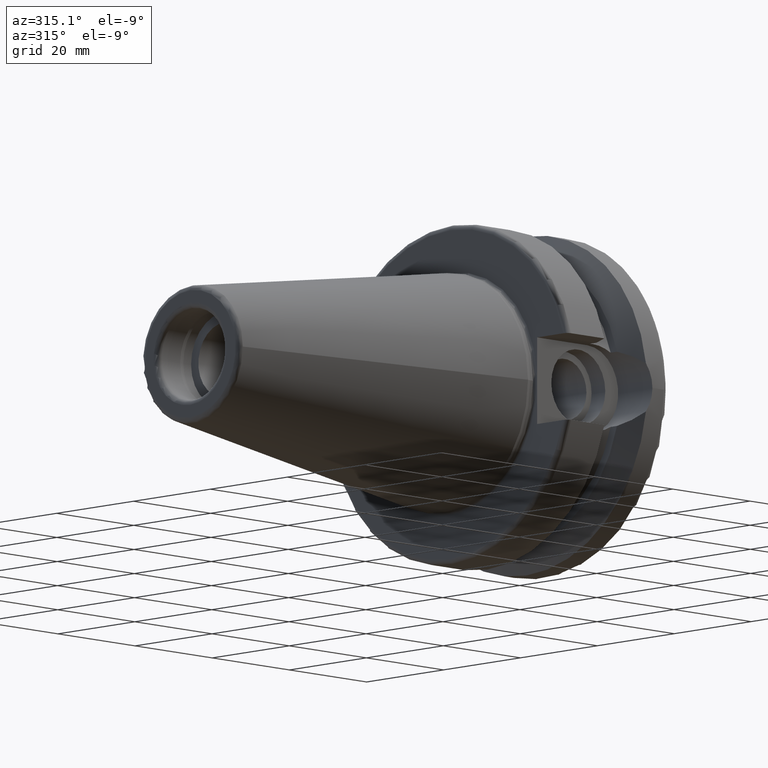
[diagram: clean part render]
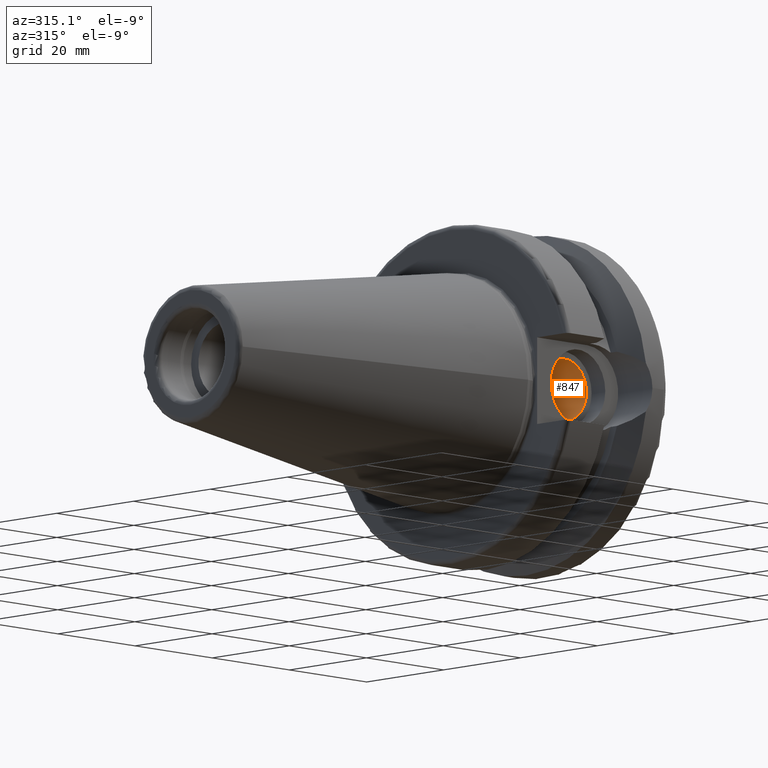
[diagram: same view with one face highlighted and labeled with its STEP entity id]
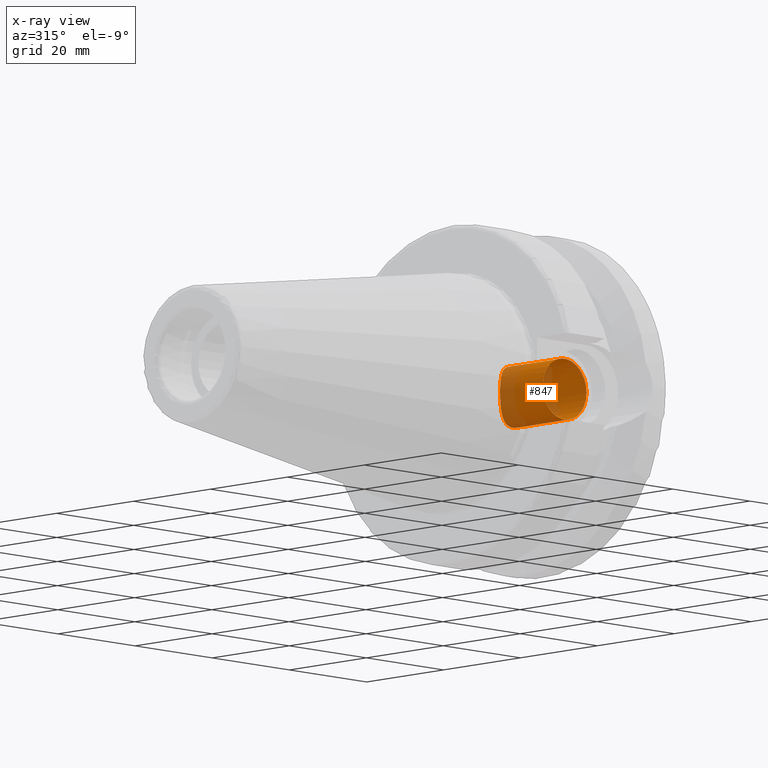
[diagram: x-ray of the same camera — body ghosted, the highlighted face saturated]
A machine part, auxiliary view. The second image highlights one B-rep face of the part: STEP entity #847.
The next image is the same camera in x-ray: the body ghosted, the highlighted face saturated — about 30% of this face is hidden behind the body in this view.
In plain terms, the highlighted cylindrical surface (bore or boss wall) has radius 5.6642 mm, axis along (0, -1, 0).
Its self-contained STEP definition (entity closure, byte-faithful):
#36=B_SPLINE_CURVE_WITH_KNOTS('',3,(#1334,#1335,#1336,#1337,#1338,#1339,
#1340,#1341,#1342,#1343),.UNSPECIFIED.,.F.,.F.,(4,2,2,2,4),(0.,0.225884839831722,
0.451769679663443,0.67407154991177,0.896373420160097),.UNSPECIFIED.);
#37=B_SPLINE_CURVE_WITH_KNOTS('',3,(#1344,#1345,#1346,#1347,#1348,#1349,
#1350,#1351,#1352,#1353,#1354,#1355,#1356,#1357,#1358,#1359,#1360,#1361,
#1362,#1363,#1364,#1365,#1366,#1367,#1368,#1369),.UNSPECIFIED.,.F.,.F.,
(4,2,2,2,2,2,2,2,2,2,2,2,4),(0.896373420160097,1.11867529040842,1.34097716065675,
1.56686200048847,1.79274684032019,2.01863168015191,2.24451651998363,2.46681839023196,
2.68912026048029,2.91142213072862,3.13372400097694,3.35960884080866,3.58549368064038),
 .UNSPECIFIED.);
#89=FACE_OUTER_BOUND('',#144,.T.);
#144=EDGE_LOOP('',(#581,#582,#583,#584,#585));
#207=LINE('',#1332,#253);
#253=VECTOR('',#1059,5.6642);
#300=CIRCLE('',#926,5.6642);
#361=VERTEX_POINT('',#1324);
#363=VERTEX_POINT('',#1331);
#364=VERTEX_POINT('',#1333);
#446=EDGE_CURVE('',#361,#361,#300,.T.);
#449=EDGE_CURVE('',#361,#363,#207,.T.);
#450=EDGE_CURVE('',#364,#363,#36,.T.);
#451=EDGE_CURVE('',#363,#364,#37,.T.);
#581=ORIENTED_EDGE('',*,*,#446,.T.);
#582=ORIENTED_EDGE('',*,*,#449,.T.);
#583=ORIENTED_EDGE('',*,*,#450,.F.);
#584=ORIENTED_EDGE('',*,*,#451,.F.);
#585=ORIENTED_EDGE('',*,*,#449,.F.);
#828=CYLINDRICAL_SURFACE('',#929,5.6642);
#847=ADVANCED_FACE('',(#89),#828,.F.);
#926=AXIS2_PLACEMENT_3D('',#1325,#1050,#1051);
#929=AXIS2_PLACEMENT_3D('',#1330,#1057,#1058);
#1050=DIRECTION('center_axis',(0.,-1.,0.));
#1051=DIRECTION('ref_axis',(1.,0.,8.57315076930623E-17));
#1057=DIRECTION('center_axis',(0.,-1.,0.));
#1058=DIRECTION('ref_axis',(1.,0.,8.57315076930623E-17));
#1059=DIRECTION('',(0.,1.,0.));
#1324=CARTESIAN_POINT('',(6.9858,-19.05,-1.17926484584809E-15));
#1325=CARTESIAN_POINT('Origin',(12.65,-19.05,0.));
#1330=CARTESIAN_POINT('Origin',(12.65,111.672365815856,0.));
#1331=CARTESIAN_POINT('',(6.9858,-7.9375,-1.35291075235384E-15));
#1332=CARTESIAN_POINT('',(6.9858,111.672365815856,-1.17926484584809E-15));
#1333=CARTESIAN_POINT('',(12.65,-5.5606424637806,5.6642));
#1334=CARTESIAN_POINT('Ctrl Pts',(12.65,-5.5606424637806,5.6642));
#1335=CARTESIAN_POINT('Ctrl Pts',(11.8970505338943,-5.5606424637806,5.6642));
#1336=CARTESIAN_POINT('Ctrl Pts',(11.1322080820212,-5.72837393024956,5.50810495630867));
#1337=CARTESIAN_POINT('Ctrl Pts',(9.75410833724456,-6.23672453115194,4.92511332997724));
#1338=CARTESIAN_POINT('Ctrl Pts',(9.13685771753389,-6.56532564677136,4.49724617752757));
#1339=CARTESIAN_POINT('Ctrl Pts',(8.16055871616412,-7.13592546644233,3.52094717615781));
#1340=CARTESIAN_POINT('Ctrl Pts',(7.72778466228195,-7.42313747945352,2.90239775841698));
#1341=CARTESIAN_POINT('Ctrl Pts',(7.13977644150669,-7.82542834698347,1.51312771844524));
#1342=CARTESIAN_POINT('Ctrl Pts',(6.9858,-7.9375,0.741006234161089));
#1343=CARTESIAN_POINT('Ctrl Pts',(6.9858,-7.9375,-6.93889390390723E-16));
#1344=CARTESIAN_POINT('Ctrl Pts',(6.9858,-7.9375,-1.38777878078145E-15));
#1345=CARTESIAN_POINT('Ctrl Pts',(6.9858,-7.9375,-0.74100623416109));
#1346=CARTESIAN_POINT('Ctrl Pts',(7.13977644150669,-7.82542834698347,-1.51312771844524));
#1347=CARTESIAN_POINT('Ctrl Pts',(7.72778466228195,-7.42313747945352,-2.90239775841698));
#1348=CARTESIAN_POINT('Ctrl Pts',(8.16055871616412,-7.13592546644233,-3.52094717615781));
#1349=CARTESIAN_POINT('Ctrl Pts',(9.13685771753389,-6.56532564677136,-4.49724617752757));
#1350=CARTESIAN_POINT('Ctrl Pts',(9.75410833724456,-6.23672453115194,-4.92511332997724));
#1351=CARTESIAN_POINT('Ctrl Pts',(11.1322080820212,-5.72837393024956,-5.50810495630867));
#1352=CARTESIAN_POINT('Ctrl Pts',(11.8970505338943,-5.5606424637806,-5.6642));
#1353=CARTESIAN_POINT('Ctrl Pts',(13.4029494661057,-5.5606424637806,-5.6642));
#1354=CARTESIAN_POINT('Ctrl Pts',(14.1677919179788,-5.72837393024956,-5.50810495630867));
#1355=CARTESIAN_POINT('Ctrl Pts',(15.5458916627554,-6.23672453115194,-4.92511332997724));
#1356=CARTESIAN_POINT('Ctrl Pts',(16.1631422824661,-6.56532564677136,-4.49724617752757));
#1357=CARTESIAN_POINT('Ctrl Pts',(17.1394412838359,-7.13592546644233,-3.52094717615781));
#1358=CARTESIAN_POINT('Ctrl Pts',(17.572215337718,-7.42313747945352,-2.90239775841698));
#1359=CARTESIAN_POINT('Ctrl Pts',(18.1602235584933,-7.82542834698347,-1.51312771844525));
#1360=CARTESIAN_POINT('Ctrl Pts',(18.3142,-7.9375,-0.74100623416109));
#1361=CARTESIAN_POINT('Ctrl Pts',(18.3142,-7.9375,0.74100623416109));
#1362=CARTESIAN_POINT('Ctrl Pts',(18.1602235584933,-7.82542834698346,1.51312771844525));
#1363=CARTESIAN_POINT('Ctrl Pts',(17.572215337718,-7.42313747945352,2.90239775841698));
#1364=CARTESIAN_POINT('Ctrl Pts',(17.1394412838359,-7.13592546644233,3.52094717615781));
#1365=CARTESIAN_POINT('Ctrl Pts',(16.1631422824661,-6.56532564677136,4.49724617752757));
#1366=CARTESIAN_POINT('Ctrl Pts',(15.5458916627554,-6.23672453115194,4.92511332997724));
#1367=CARTESIAN_POINT('Ctrl Pts',(14.1677919179788,-5.72837393024956,5.50810495630867));
#1368=CARTESIAN_POINT('Ctrl Pts',(13.4029494661057,-5.5606424637806,5.6642));
#1369=CARTESIAN_POINT('Ctrl Pts',(12.65,-5.5606424637806,5.6642));